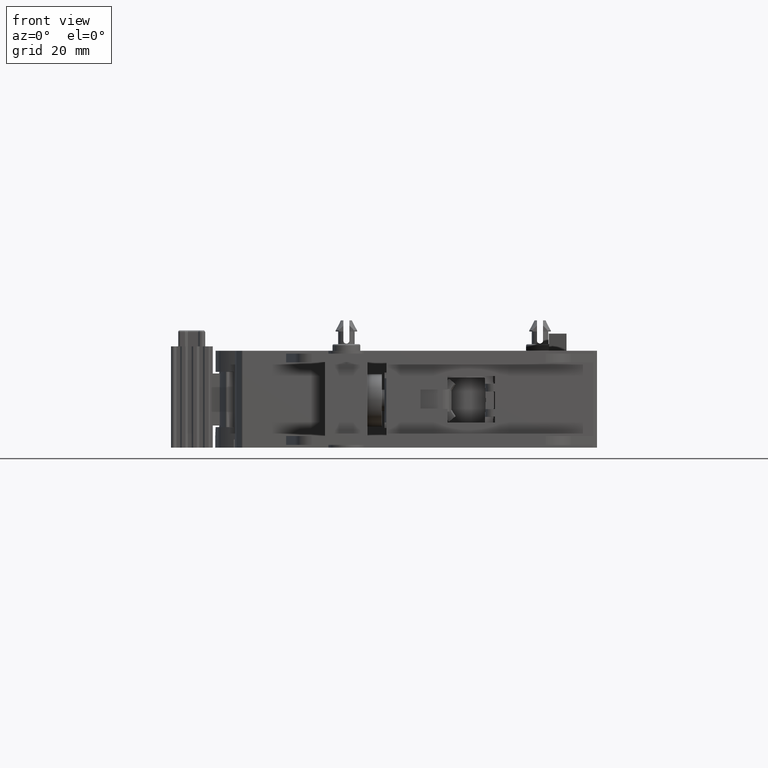
[diagram: clean part render]
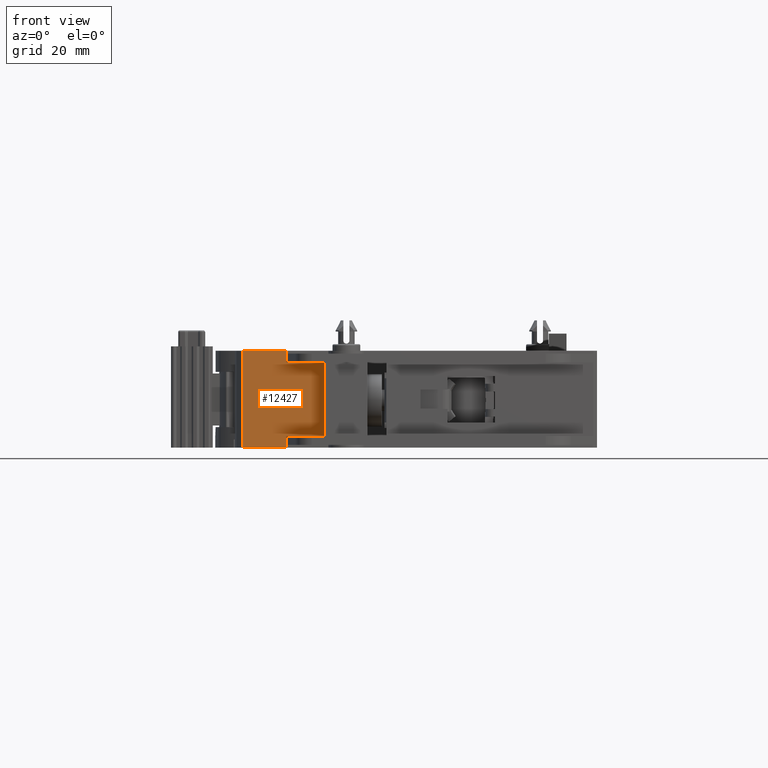
[diagram: same view with one face highlighted and labeled with its STEP entity id]
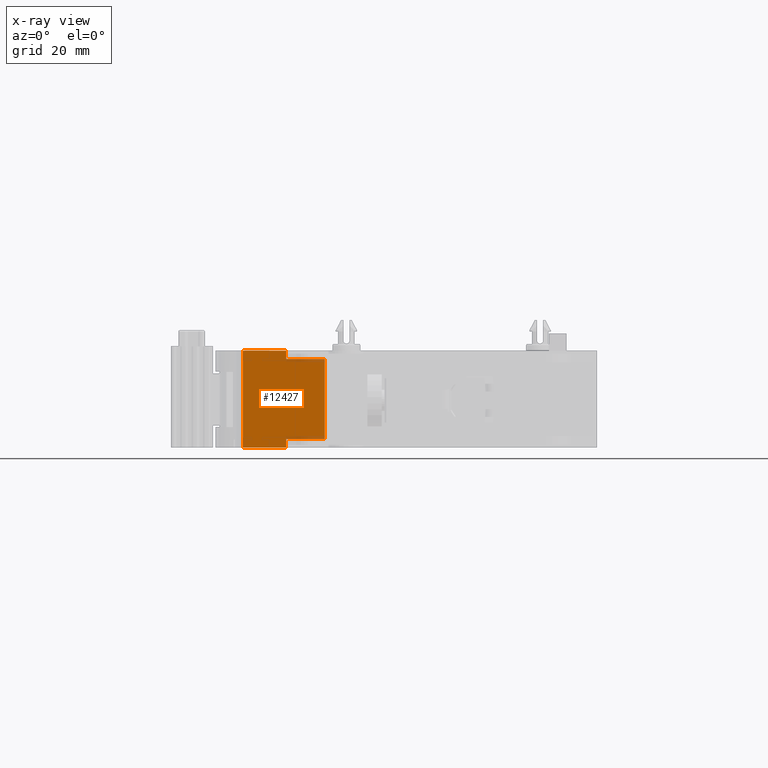
[diagram: x-ray of the same camera — body ghosted, the highlighted face saturated]
A machine part, front view. The second image highlights one B-rep face of the part: STEP entity #12427.
The next image is the same camera in x-ray: the body ghosted, the highlighted face saturated — about 3% of this face is hidden behind the body in this view.
In plain terms, the highlighted planar face has unit normal (-0, -1, 0).
Its self-contained STEP definition (entity closure, byte-faithful):
#736 = VECTOR ( 'NONE', #12815, 39.37007874015748143 ) ;
#2165 = DIRECTION ( 'NONE',  ( -1.000000000000000000, -0.0000000000000000000, -0.0000000000000000000 ) ) ;
#2457 = VECTOR ( 'NONE', #23961, 39.37007874015748143 ) ;
#3074 = EDGE_CURVE ( 'NONE', #11395, #31742, #20829, .T. ) ;
#3441 = EDGE_CURVE ( 'NONE', #7361, #4239, #12511, .T. ) ;
#4032 = CARTESIAN_POINT ( 'NONE',  ( -0.5714405434401574890, -0.8858267716534988789, 0.6889763779527560139 ) ) ;
#4239 = VERTEX_POINT ( 'NONE', #10149 ) ;
#4366 = ORIENTED_EDGE ( 'NONE', *, *, #5978, .T. ) ;
#4709 = VERTEX_POINT ( 'NONE', #29346 ) ;
#4844 = DIRECTION ( 'NONE',  ( -1.000000000000000000, 4.439704500431484846E-16, -0.0000000000000000000 ) ) ;
#4909 = CARTESIAN_POINT ( 'NONE',  ( -0.5714405434401574890, -0.8858267716534767855, -4.312619414957868713 ) ) ;
#5136 = CARTESIAN_POINT ( 'NONE',  ( 0.01181102362598431162, -0.8858267716535433989, 0.05905511811023623353 ) ) ;
#5657 = EDGE_CURVE ( 'NONE', #12158, #27230, #10289, .T. ) ;
#5978 = EDGE_CURVE ( 'NONE', #7361, #29776, #25232, .T. ) ;
#6468 = FACE_OUTER_BOUND ( 'NONE', #16003, .T. ) ;
#7361 = VERTEX_POINT ( 'NONE', #26529 ) ;
#7519 = DIRECTION ( 'NONE',  ( -1.000000000000000000, -0.0000000000000000000, -0.0000000000000000000 ) ) ;
#7843 = CARTESIAN_POINT ( 'NONE',  ( -0.2637795275551181318, -0.8858267716535433989, -4.312619414957868713 ) ) ;
#7892 = EDGE_CURVE ( 'NONE', #4239, #4709, #31711, .T. ) ;
#7935 = EDGE_CURVE ( 'NONE', #11395, #12158, #19931, .T. ) ;
#8734 = CARTESIAN_POINT ( 'NONE',  ( 0.01181102362598431162, -0.8858267716535433989, 0.05905511811023623353 ) ) ;
#8745 = ORIENTED_EDGE ( 'NONE', *, *, #3074, .F. ) ;
#9632 = CARTESIAN_POINT ( 'NONE',  ( -0.2637795275551181318, -0.8858267716535433989, 0.05905511811023623353 ) ) ;
#10149 = CARTESIAN_POINT ( 'NONE',  ( -0.5714405434401574890, -0.8858267716534541369, 0.0000000000000000000 ) ) ;
#10289 = LINE ( 'NONE', #7843, #29404 ) ;
#11395 = VERTEX_POINT ( 'NONE', #22887 ) ;
#12002 = PLANE ( 'NONE',  #14359 ) ;
#12158 = VERTEX_POINT ( 'NONE', #27872 ) ;
#12427 = ADVANCED_FACE ( 'NONE', ( #6468 ), #12002, .T. ) ;
#12469 = ORIENTED_EDGE ( 'NONE', *, *, #3441, .F. ) ;
#12511 = LINE ( 'NONE', #24296, #26775 ) ;
#12815 = DIRECTION ( 'NONE',  ( 0.0000000000000000000, 0.0000000000000000000, 1.000000000000000000 ) ) ;
#13142 = CARTESIAN_POINT ( 'NONE',  ( -0.2637795275551181318, -0.8858267716535433989, -4.312619414957868713 ) ) ;
#14359 = AXIS2_PLACEMENT_3D ( 'NONE', #21970, #19038, #31933 ) ;
#14383 = DIRECTION ( 'NONE',  ( 0.0000000000000000000, 0.0000000000000000000, 1.000000000000000000 ) ) ;
#15011 = ORIENTED_EDGE ( 'NONE', *, *, #24805, .F. ) ;
#15233 = ORIENTED_EDGE ( 'NONE', *, *, #7892, .F. ) ;
#16003 = EDGE_LOOP ( 'NONE', ( #4366, #15011, #8745, #24158, #16405, #20678, #15233, #12469 ) ) ;
#16405 = ORIENTED_EDGE ( 'NONE', *, *, #5657, .T. ) ;
#19038 = DIRECTION ( 'NONE',  ( -1.447343667140664045E-13, -1.000000000000000000, 0.0000000000000000000 ) ) ;
#19710 = VECTOR ( 'NONE', #2165, 39.37007874015748143 ) ;
#19931 = LINE ( 'NONE', #30549, #29514 ) ;
#20678 = ORIENTED_EDGE ( 'NONE', *, *, #23673, .F. ) ;
#20829 = LINE ( 'NONE', #8734, #23077 ) ;
#21970 = CARTESIAN_POINT ( 'NONE',  ( -0.5714405434401574890, -0.8858267716534988789, -4.312619414957868713 ) ) ;
#22887 = CARTESIAN_POINT ( 'NONE',  ( 0.01181102362598431162, -0.8858267716535433989, 0.6299212598425196763 ) ) ;
#23077 = VECTOR ( 'NONE', #26203, 39.37007874015748143 ) ;
#23673 = EDGE_CURVE ( 'NONE', #4709, #27230, #26567, .T. ) ;
#23961 = DIRECTION ( 'NONE',  ( 1.000000000000000000, -1.447343667140664045E-13, 0.0000000000000000000 ) ) ;
#24158 = ORIENTED_EDGE ( 'NONE', *, *, #7935, .T. ) ;
#24296 = CARTESIAN_POINT ( 'NONE',  ( -0.5714405434401574890, -0.8858267716535432879, 0.0000000000000000000 ) ) ;
#24550 = CARTESIAN_POINT ( 'NONE',  ( 1.149633544619561132, -0.8858267716535433989, 0.05905511811023623353 ) ) ;
#24805 = EDGE_CURVE ( 'NONE', #31742, #29776, #32050, .T. ) ;
#24822 = VECTOR ( 'NONE', #14383, 39.37007874015748143 ) ;
#24995 = DIRECTION ( 'NONE',  ( 0.0000000000000000000, 0.0000000000000000000, 1.000000000000000000 ) ) ;
#25232 = LINE ( 'NONE', #13142, #736 ) ;
#26203 = DIRECTION ( 'NONE',  ( 0.0000000000000000000, 0.0000000000000000000, -1.000000000000000000 ) ) ;
#26529 = CARTESIAN_POINT ( 'NONE',  ( -0.2637795275551181318, -0.8858267716535433989, 0.0000000000000000000 ) ) ;
#26567 = LINE ( 'NONE', #4032, #2457 ) ;
#26775 = VECTOR ( 'NONE', #4844, 39.37007874015748143 ) ;
#27230 = VERTEX_POINT ( 'NONE', #27366 ) ;
#27366 = CARTESIAN_POINT ( 'NONE',  ( -0.2637795275551181318, -0.8858267716535433989, 0.6889763779527560139 ) ) ;
#27872 = CARTESIAN_POINT ( 'NONE',  ( -0.2637795275551181318, -0.8858267716535433989, 0.6299212598425196763 ) ) ;
#29346 = CARTESIAN_POINT ( 'NONE',  ( -0.5714405434401574890, -0.8858267716534767855, 0.6889763779527560139 ) ) ;
#29404 = VECTOR ( 'NONE', #24995, 39.37007874015748143 ) ;
#29514 = VECTOR ( 'NONE', #7519, 39.37007874015748143 ) ;
#29776 = VERTEX_POINT ( 'NONE', #9632 ) ;
#30549 = CARTESIAN_POINT ( 'NONE',  ( 1.149633544619561132, -0.8858267716535433989, 0.6299212598425196763 ) ) ;
#31711 = LINE ( 'NONE', #4909, #24822 ) ;
#31742 = VERTEX_POINT ( 'NONE', #5136 ) ;
#31933 = DIRECTION ( 'NONE',  ( 1.000000000000000000, -1.447343667140664045E-13, 0.0000000000000000000 ) ) ;
#32050 = LINE ( 'NONE', #24550, #19710 ) ;